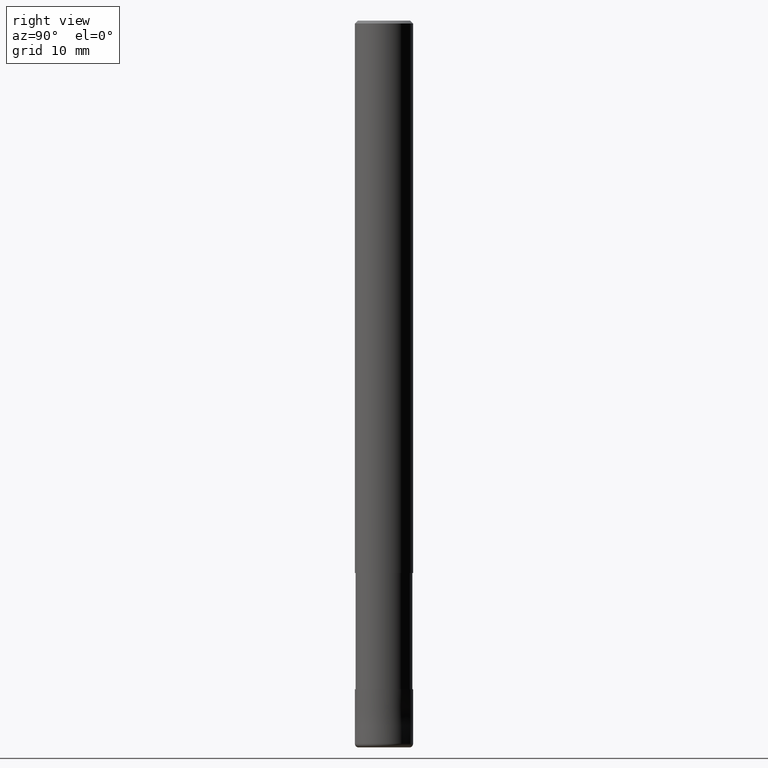
[diagram: clean part render]
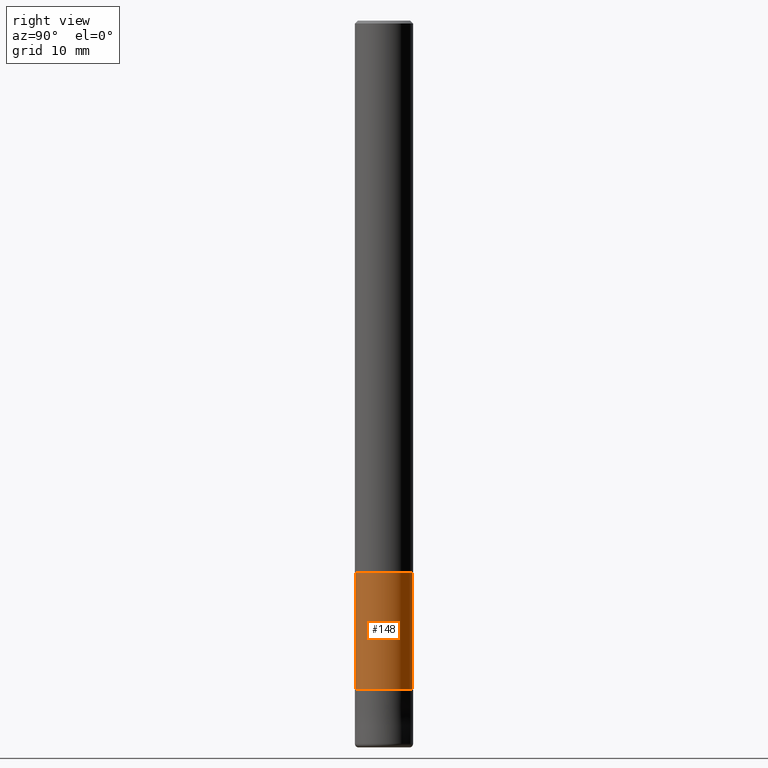
[diagram: same view with one face highlighted and labeled with its STEP entity id]
A machine part, right view. The second image highlights one B-rep face of the part: STEP entity #148.
In plain terms, the highlighted cylindrical surface (edge-blend (fillet) strip) has radius 3.9099 mm, axis along (-0, -0, 1).
Its self-contained STEP definition (entity closure, byte-faithful):
#98=EDGE_CURVE('',#146,#154,#235,.T.);
#114=EDGE_CURVE('',#184,#202,#256,.T.);
#146=VERTEX_POINT('',#293);
#148=ADVANCED_FACE('',(#295),#296,.T.);
#154=VERTEX_POINT('',#302);
#162=EDGE_CURVE('',#154,#202,#312,.T.);
#184=VERTEX_POINT('',#336);
#202=VERTEX_POINT('',#355);
#206=EDGE_CURVE('',#184,#146,#359,.T.);
#235=CIRCLE('',#384,3.90995);
#256=CIRCLE('',#408,3.90995);
#293=CARTESIAN_POINT('',(0.0,3.90995,-92.0));
#295=FACE_OUTER_BOUND('',#453,.T.);
#296=CYLINDRICAL_SURFACE('',#454,3.90995);
#302=CARTESIAN_POINT('',(4.7881496131278E-016,-3.90995,-92.0));
#312=LINE('',#473,#474);
#336=CARTESIAN_POINT('',(0.0,3.90995,-76.0));
#355=CARTESIAN_POINT('',(4.7881496131278E-016,-3.90995,-76.0));
#359=LINE('',#533,#534);
#384=AXIS2_PLACEMENT_3D('',#549,#550,#551);
#408=AXIS2_PLACEMENT_3D('',#589,#590,#591);
#453=EDGE_LOOP('',(#644,#645,#646,#647));
#454=AXIS2_PLACEMENT_3D('',#648,#649,#650);
#473=CARTESIAN_POINT('',(4.7881496131278E-016,-3.90995,-84.0));
#474=VECTOR('',#668,1.0);
#533=CARTESIAN_POINT('',(-4.7881496131278E-016,3.90995,-84.0));
#534=VECTOR('',#714,1.0);
#549=CARTESIAN_POINT('',(0.0,0.0,-92.0));
#550=DIRECTION('',(0.0,0.0,-1.0));
#551=DIRECTION('',(0.0,1.0,0.0));
#589=CARTESIAN_POINT('',(0.0,0.0,-76.0));
#590=DIRECTION('',(0.0,0.0,-1.0));
#591=DIRECTION('',(0.0,1.0,0.0));
#644=ORIENTED_EDGE('',*,*,#206,.F.);
#645=ORIENTED_EDGE('',*,*,#114,.T.);
#646=ORIENTED_EDGE('',*,*,#162,.F.);
#647=ORIENTED_EDGE('',*,*,#98,.F.);
#648=CARTESIAN_POINT('',(0.0,0.0,-84.0));
#649=DIRECTION('',(-0.0,-0.0,1.0));
#650=DIRECTION('',(0.0,1.0,0.0));
#668=DIRECTION('',(-0.0,-0.0,1.0));
#714=DIRECTION('',(0.0,0.0,-1.0));